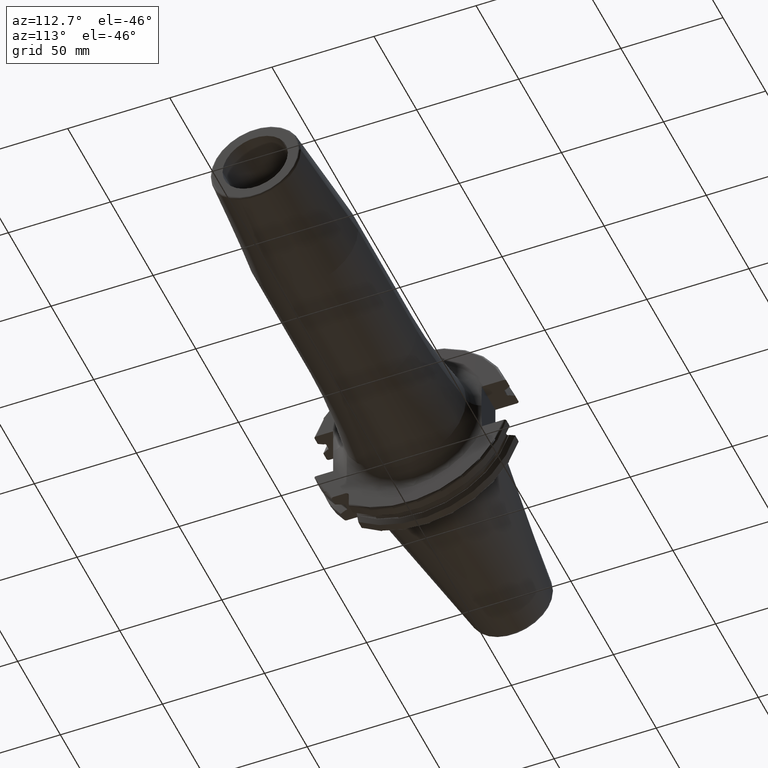
[diagram: clean part render]
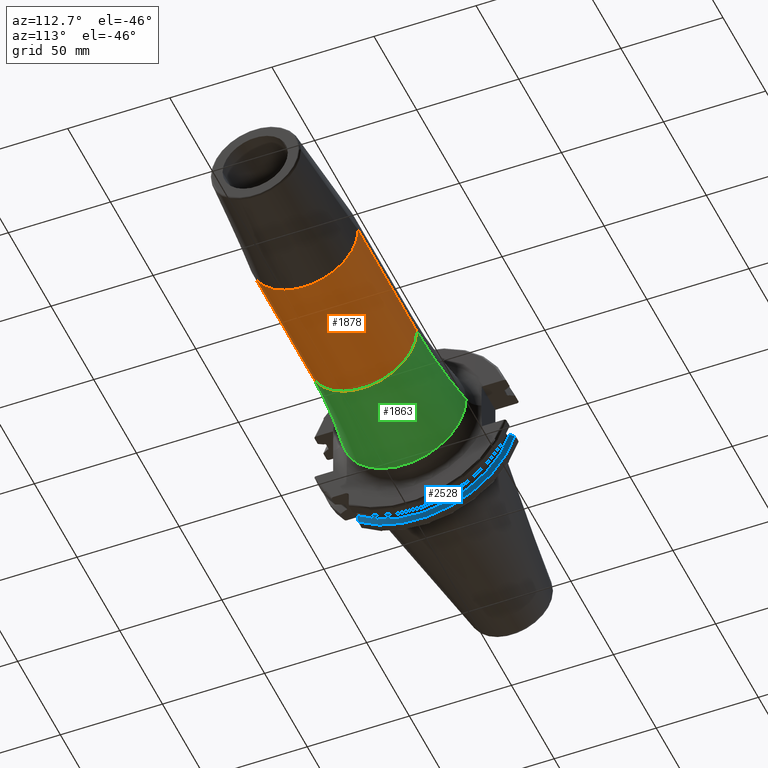
[diagram: same view with three faces highlighted in distinct colors, each labeled with its STEP entity id]
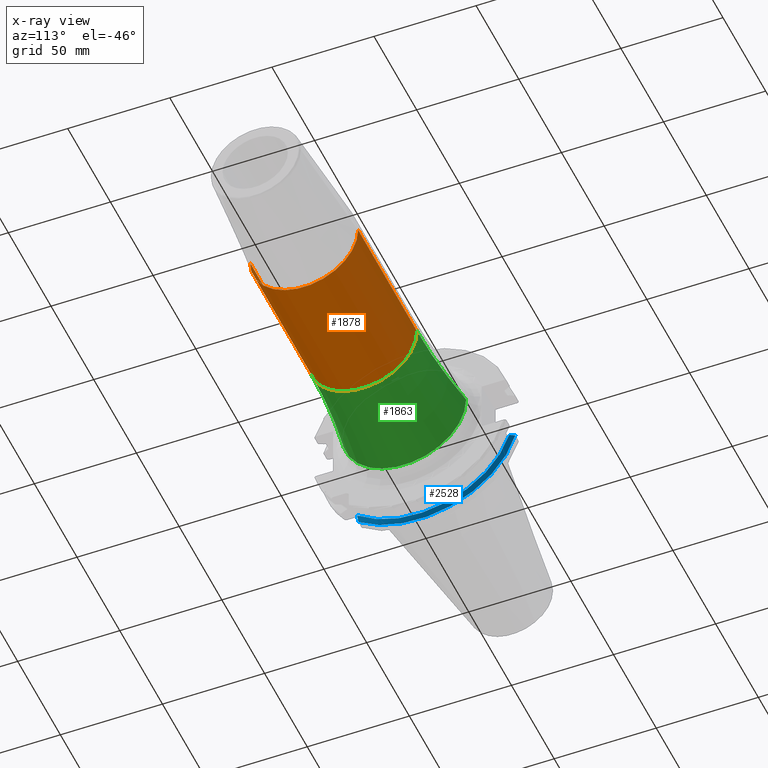
[diagram: x-ray of the same camera — body ghosted, the three highlighted faces saturated]
A machine part, auxiliary view with three faces highlighted in distinct colors.
The next image is the same camera in x-ray (body ghosted, the three faces saturated) — at least one of them is partly hidden behind the body in this view.
Their STEP definitions:

[orange] entity #1878 — the highlighted cylindrical surface (partial cylindrical patch) has radius 26.5 mm, axis along (1, 0, 0).
#250=CARTESIAN_POINT('',(7.405E1,0.E0,0.E0));
#251=DIRECTION('',(1.E0,0.E0,0.E0));
#252=DIRECTION('',(0.E0,-1.E0,0.E0));
#253=AXIS2_PLACEMENT_3D('',#250,#251,#252);
#255=DIRECTION('',(-1.E0,0.E0,0.E0));
#256=VECTOR('',#255,6.877207868721E1);
#257=CARTESIAN_POINT('',(1.428220786872E2,-2.65E1,0.E0));
#258=LINE('',#257,#256);
#259=CARTESIAN_POINT('',(1.428220786872E2,0.E0,0.E0));
#260=DIRECTION('',(-1.E0,0.E0,0.E0));
#261=DIRECTION('',(0.E0,1.E0,0.E0));
#262=AXIS2_PLACEMENT_3D('',#259,#260,#261);
#264=DIRECTION('',(-1.E0,0.E0,0.E0));
#265=VECTOR('',#264,6.877207868721E1);
#266=CARTESIAN_POINT('',(1.428220786872E2,2.65E1,0.E0));
#267=LINE('',#266,#265);
#1490=CARTESIAN_POINT('',(1.428220786872E2,2.65E1,0.E0));
#1491=CARTESIAN_POINT('',(1.428220786872E2,-2.65E1,0.E0));
#1492=VERTEX_POINT('',#1490);
#1493=VERTEX_POINT('',#1491);
#1510=CARTESIAN_POINT('',(7.405E1,2.65E1,0.E0));
#1511=CARTESIAN_POINT('',(7.405E1,-2.65E1,0.E0));
#1512=VERTEX_POINT('',#1510);
#1513=VERTEX_POINT('',#1511);
#1864=CARTESIAN_POINT('',(1.00025E1,0.E0,0.E0));
#1865=DIRECTION('',(1.E0,0.E0,0.E0));
#1866=DIRECTION('',(0.E0,-1.E0,0.E0));
#1867=AXIS2_PLACEMENT_3D('',#1864,#1865,#1866);
#1868=CYLINDRICAL_SURFACE('',#1867,2.65E1);
#1869=ORIENTED_EDGE('',*,*,#1858,.F.);
#1871=ORIENTED_EDGE('',*,*,#1870,.F.);
#1873=ORIENTED_EDGE('',*,*,#1872,.F.);
#1875=ORIENTED_EDGE('',*,*,#1874,.T.);
#1876=EDGE_LOOP('',(#1869,#1871,#1873,#1875));
#1877=FACE_OUTER_BOUND('',#1876,.F.);
#1878=ADVANCED_FACE('',(#1877),#1868,.T.);
#254=CIRCLE('',#253,2.65E1);
#263=CIRCLE('',#262,2.65E1);
#1858=EDGE_CURVE('',#1513,#1512,#254,.T.);
#1870=EDGE_CURVE('',#1493,#1513,#258,.T.);
#1872=EDGE_CURVE('',#1492,#1493,#263,.T.);
#1874=EDGE_CURVE('',#1492,#1512,#267,.T.);

[blue] entity #2528 — the highlighted conical surface has half-angle 60 deg.
#392=CARTESIAN_POINT('',(9.2625E0,0.E0,0.E0));
#393=DIRECTION('',(-1.E0,0.E0,0.E0));
#394=DIRECTION('',(0.E0,9.606411165078E-1,-2.777924499957E-1));
#395=AXIS2_PLACEMENT_3D('',#392,#393,#394);
#741=CARTESIAN_POINT('',(7.934621614173E0,0.E0,0.E0));
#742=DIRECTION('',(1.E0,0.E0,0.E0));
#743=DIRECTION('',(0.E0,-6.124647345473E-1,-7.904979120376E-1));
#744=AXIS2_PLACEMENT_3D('',#741,#742,#743);
#848=CARTESIAN_POINT('',(9.2625E0,4.460981716077E1,-1.29E1));
#849=CARTESIAN_POINT('',(9.118283773553E0,4.486984125009E1,-1.29E1));
#850=CARTESIAN_POINT('',(8.827633549554E0,4.539353719098E1,-1.29E1));
#851=CARTESIAN_POINT('',(8.385043355543E0,4.618996220278E1,-1.29E1));
#852=CARTESIAN_POINT('',(8.085504386120E0,4.672829507383E1,-1.29E1));
#853=CARTESIAN_POINT('',(7.934621614173E0,4.699929686974E1,-1.29E1));
#855=CARTESIAN_POINT('',(9.2625E0,-2.985E1,-3.557278857662E1));
#856=CARTESIAN_POINT('',(9.122796459387E0,-2.985E1,-3.588866659244E1));
#857=CARTESIAN_POINT('',(8.838204990616E0,-2.985E1,-3.652866450573E1));
#858=CARTESIAN_POINT('',(8.396067032347E0,-2.985E1,-3.751242476101E1));
#859=CARTESIAN_POINT('',(8.090246731407E0,-2.985E1,-3.818590359837E1));
#860=CARTESIAN_POINT('',(7.934621614173E0,-2.985E1,-3.852689198793E1));
#1346=CARTESIAN_POINT('',(9.2625E0,4.460981716077E1,-1.29E1));
#1348=VERTEX_POINT('',#1346);
#1390=VERTEX_POINT('',#853);
#1439=CARTESIAN_POINT('',(9.2625E0,-2.985E1,-3.557278857662E1));
#1440=VERTEX_POINT('',#1439);
#1483=VERTEX_POINT('',#860);
#2517=CARTESIAN_POINT('',(8.598560807087E0,0.E0,0.E0));
#2518=DIRECTION('',(-1.E0,0.E0,0.E0));
#2519=DIRECTION('',(0.E0,1.E0,0.E0));
#2520=AXIS2_PLACEMENT_3D('',#2517,#2518,#2519);
#2521=CONICAL_SURFACE('',#2520,4.758752358474E1,6.E1);
#2522=ORIENTED_EDGE('',*,*,#1717,.T.);
#2523=ORIENTED_EDGE('',*,*,#2418,.F.);
#2524=ORIENTED_EDGE('',*,*,#2372,.F.);
#2525=ORIENTED_EDGE('',*,*,#2104,.F.);
#2526=EDGE_LOOP('',(#2522,#2523,#2524,#2525));
#2527=FACE_OUTER_BOUND('',#2526,.F.);
#2528=ADVANCED_FACE('',(#2527),#2521,.T.);
#396=CIRCLE('',#395,4.643754716948E1);
#745=CIRCLE('',#744,4.87375E1);
#854=B_SPLINE_CURVE_WITH_KNOTS('',3,(#848,#849,#850,#851,#852,#853),
.UNSPECIFIED.,.F.,.F.,(4,1,1,4),(0.E0,3.333333333333E-1,6.666666666667E-1,1.E0),
.UNSPECIFIED.);
#861=B_SPLINE_CURVE_WITH_KNOTS('',3,(#855,#856,#857,#858,#859,#860),
.UNSPECIFIED.,.F.,.F.,(4,1,1,4),(0.E0,3.333333333333E-1,6.666666666667E-1,1.E0),
.UNSPECIFIED.);
#1717=EDGE_CURVE('',#1348,#1390,#854,.T.);
#2104=EDGE_CURVE('',#1348,#1440,#396,.T.);
#2372=EDGE_CURVE('',#1440,#1483,#861,.T.);
#2418=EDGE_CURVE('',#1483,#1390,#745,.T.);

[green] entity #1863 — the highlighted toroidal blend (fillet) surface has major radius 326.5 mm and minor (blend) radius 300 mm.
#235=CARTESIAN_POINT('',(2.576232876712E1,0.E0,0.E0));
#236=DIRECTION('',(1.E0,0.E0,0.E0));
#237=DIRECTION('',(0.E0,-1.E0,0.E0));
#238=AXIS2_PLACEMENT_3D('',#235,#236,#237);
#240=CARTESIAN_POINT('',(7.405E1,-3.265E2,-7.996943598432E-14));
#241=DIRECTION('',(0.E0,0.E0,1.E0));
#242=DIRECTION('',(0.E0,1.E0,0.E0));
#243=AXIS2_PLACEMENT_3D('',#240,#241,#242);
#245=CARTESIAN_POINT('',(7.405E1,3.265E2,3.998471799216E-14));
#246=DIRECTION('',(0.E0,0.E0,-1.E0));
#247=DIRECTION('',(0.E0,-1.E0,0.E0));
#248=AXIS2_PLACEMENT_3D('',#245,#246,#247);
#250=CARTESIAN_POINT('',(7.405E1,0.E0,0.E0));
#251=DIRECTION('',(1.E0,0.E0,0.E0));
#252=DIRECTION('',(0.E0,-1.E0,0.E0));
#253=AXIS2_PLACEMENT_3D('',#250,#251,#252);
#1510=CARTESIAN_POINT('',(7.405E1,2.65E1,0.E0));
#1511=CARTESIAN_POINT('',(7.405E1,-2.65E1,0.E0));
#1512=VERTEX_POINT('',#1510);
#1513=VERTEX_POINT('',#1511);
#1521=CARTESIAN_POINT('',(2.576232876712E1,-3.041166722259E1,0.E0));
#1522=CARTESIAN_POINT('',(2.576232876712E1,3.041166722259E1,0.E0));
#1523=VERTEX_POINT('',#1521);
#1524=VERTEX_POINT('',#1522);
#1851=CARTESIAN_POINT('',(7.405E1,0.E0,0.E0));
#1852=DIRECTION('',(1.E0,0.E0,0.E0));
#1853=DIRECTION('',(0.E0,-1.E0,0.E0));
#1854=AXIS2_PLACEMENT_3D('',#1851,#1852,#1853);
#1855=TOROIDAL_SURFACE('',#1854,3.265E2,3.E2);
#1856=ORIENTED_EDGE('',*,*,#1791,.F.);
#1857=ORIENTED_EDGE('',*,*,#1846,.F.);
#1859=ORIENTED_EDGE('',*,*,#1858,.T.);
#1860=ORIENTED_EDGE('',*,*,#1842,.T.);
#1861=EDGE_LOOP('',(#1856,#1857,#1859,#1860));
#1862=FACE_OUTER_BOUND('',#1861,.F.);
#1863=ADVANCED_FACE('',(#1862),#1855,.F.);
#239=CIRCLE('',#238,3.041166722259E1);
#244=CIRCLE('',#243,3.E2);
#249=CIRCLE('',#248,3.E2);
#254=CIRCLE('',#253,2.65E1);
#1791=EDGE_CURVE('',#1523,#1524,#239,.T.);
#1842=EDGE_CURVE('',#1512,#1524,#249,.T.);
#1846=EDGE_CURVE('',#1513,#1523,#244,.T.);
#1858=EDGE_CURVE('',#1513,#1512,#254,.T.);